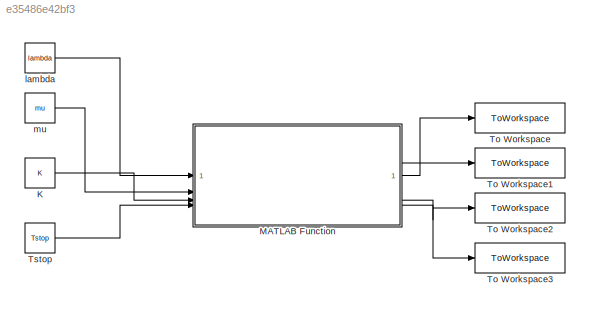
MODEL slx_e35486e42bf3
KIND model
CONFIG AbsTol = auto
CONFIG EnableMultiTasking = off
CONFIG FixedStep = auto
CONFIG MaxStep = auto
CONFIG MinStep = auto
CONFIG RelTol = 1e-3
CONFIG SampleTimeConstraint = Unconstrained
CONFIG SolverName = VariableStepAuto
CONFIG StartTime = 0.0
CONFIG StopTime = 10.0
BLOCK [Constant] K
  Value = K
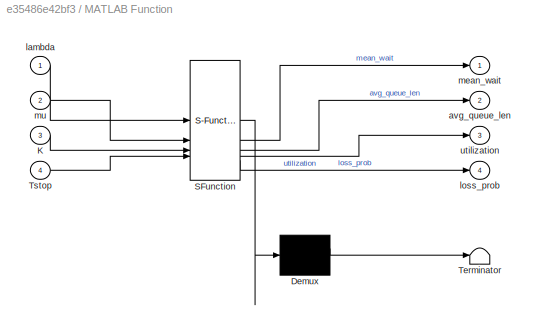
BLOCK [SubSystem] MATLAB Function
  ErrorFcn = Stateflow.Translate.translate
  PermitHierarchicalResolution = ExplicitOnly
  SFBlockType = MATLAB Function
  TreatAsAtomicUnit = on
BLOCK [Demux] MATLAB Function/ Demux 
  Outputs = 1
BLOCK [S-Function] MATLAB Function/ SFunction 
  EnableBusSupport = off
  FunctionName = sf_sfun
  PortCounts = [4 5]
  SFcnIsStateOwnerBlock = off
  SFunctionDeploymentMode = off
  Tag = Stateflow S-Function 2
BLOCK [Terminator] MATLAB Function/ Terminator 
BLOCK [Inport] MATLAB Function/K
  Port = 3
BLOCK [Inport] MATLAB Function/Tstop
  Port = 4
BLOCK [Outport] MATLAB Function/avg_queue_len
  Port = 2
BLOCK [Inport] MATLAB Function/lambda
BLOCK [Outport] MATLAB Function/loss_prob
  Port = 4
BLOCK [Outport] MATLAB Function/mean_wait
BLOCK [Inport] MATLAB Function/mu
  Port = 2
BLOCK [Outport] MATLAB Function/utilization
  Port = 3
BLOCK [ToWorkspace] To Workspace
  FixptAsFi = on
  MaxDataPoints = inf
  SampleTime = -1
  SaveFormat = Timeseries
  VariableName = mean_wait
BLOCK [ToWorkspace] To Workspace1
  FixptAsFi = on
  MaxDataPoints = inf
  SampleTime = -1
  SaveFormat = Timeseries
  VariableName = avg_queue_len
BLOCK [ToWorkspace] To Workspace2
  FixptAsFi = on
  MaxDataPoints = inf
  SampleTime = -1
  SaveFormat = Timeseries
  VariableName = utilization
BLOCK [ToWorkspace] To Workspace3
  FixptAsFi = on
  MaxDataPoints = inf
  SampleTime = -1
  SaveFormat = Timeseries
  VariableName = loss_prob
BLOCK [Constant] Tstop
  Value = Tstop
BLOCK [Constant] lambda
  Value = lambda
BLOCK [Constant] mu
  Value = mu
LINE K:1 -> MATLAB Function:3
LINE MATLAB Function:1 -> To Workspace:1
LINE MATLAB Function:2 -> To Workspace1:1
LINE MATLAB Function:3 -> To Workspace2:1
LINE MATLAB Function:4 -> To Workspace3:1
LINE Tstop:1 -> MATLAB Function:4
LINE lambda:1 -> MATLAB Function:1
LINE mu:1 -> MATLAB Function:2
CHART MATLAB Function states=1 transitions=1
  STATE_LABEL 'eML_blk_kernel()'
  STATE_LABEL 'SCRIPT:\nfunction [mean_wait, avg_queue_len, utilization, loss_prob] = ParallelServer(lambda, mu, K, Tstop)\n% --- Вхідні параметри ---\nlambda = double(lambda);\nmu = double(mu);\nK = double(K);\nTstop = double(Tstop);\n\n% Якщо розмір черги K не вказано (<=0), вважаємо її нескінченною\nif K <= 0\n    K = Inf;\nend\n\n% --- Ініціалізація симуляції ---\nnservers = 2;          % Кількість серверів\nt = 0;        ...<+3141ch>'
CHART  states=0 transitions=0
